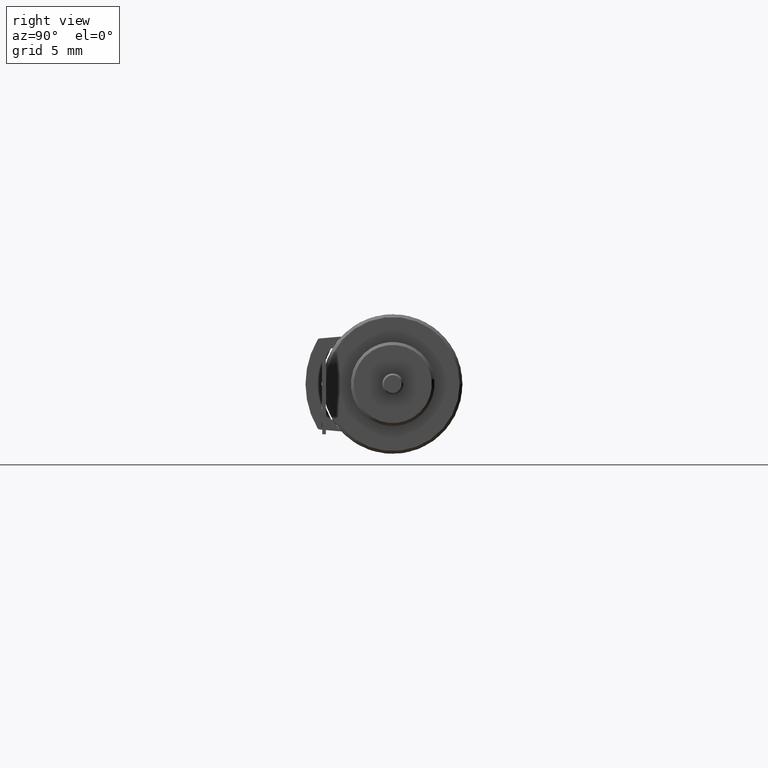
[diagram: clean part render]
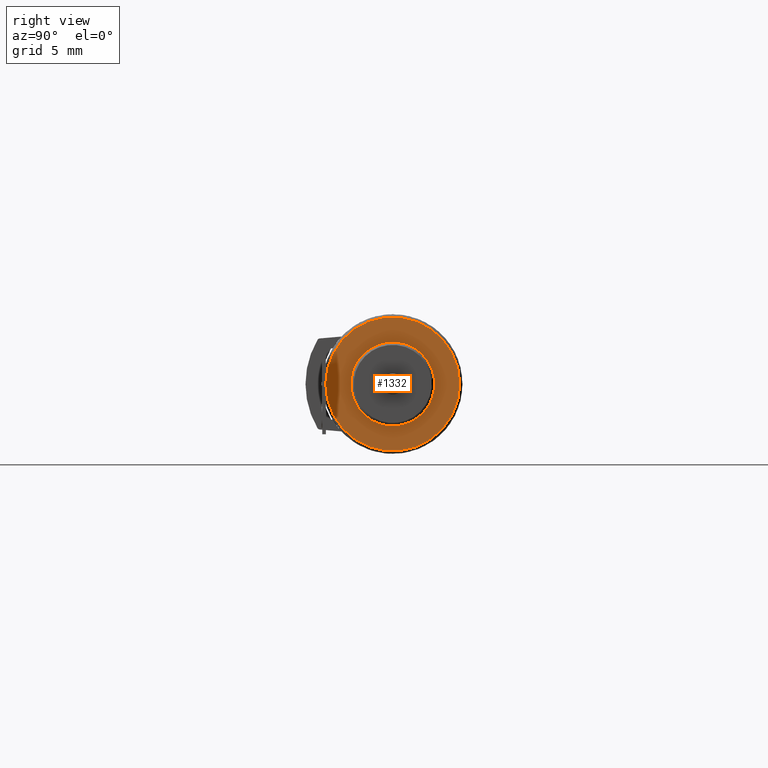
[diagram: same view with one face highlighted and labeled with its STEP entity id]
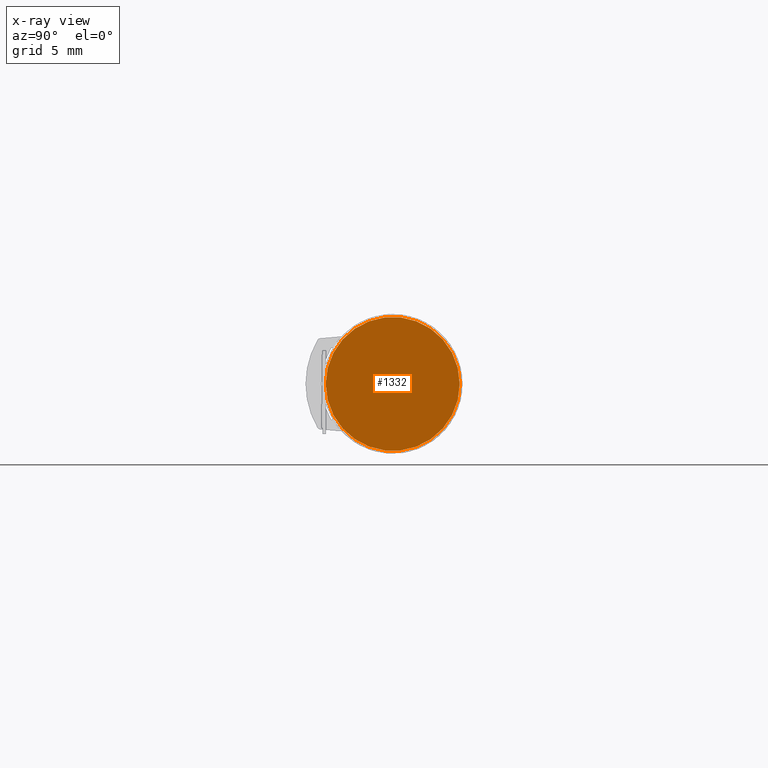
[diagram: x-ray of the same camera — body ghosted, the highlighted face saturated]
A machine part, right view. The second image highlights one B-rep face of the part: STEP entity #1332.
The next image is the same camera in x-ray: the body ghosted, the highlighted face saturated — about 0% of this face is hidden behind the body in this view.
In plain terms, the highlighted planar face has unit normal (-1, 0, 0).
Its self-contained STEP definition (entity closure, byte-faithful):
#1127=CARTESIAN_POINT('',(8.7E0,0.E0,0.E0));
#1128=DIRECTION('',(-1.E0,0.E0,0.E0));
#1129=DIRECTION('',(0.E0,1.E0,0.E0));
#1130=AXIS2_PLACEMENT_3D('',#1127,#1128,#1129);
#1132=CARTESIAN_POINT('',(8.7E0,0.E0,0.E0));
#1133=DIRECTION('',(-1.E0,0.E0,0.E0));
#1134=DIRECTION('',(0.E0,-1.E0,0.E0));
#1135=AXIS2_PLACEMENT_3D('',#1132,#1133,#1134);
#1279=CARTESIAN_POINT('',(8.7E0,4.8E0,0.E0));
#1280=CARTESIAN_POINT('',(8.7E0,-4.8E0,0.E0));
#1281=VERTEX_POINT('',#1279);
#1282=VERTEX_POINT('',#1280);
#1321=CARTESIAN_POINT('',(8.7E0,3.E0,0.E0));
#1322=DIRECTION('',(-1.E0,0.E0,0.E0));
#1323=DIRECTION('',(0.E0,-1.E0,0.E0));
#1324=AXIS2_PLACEMENT_3D('',#1321,#1322,#1323);
#1325=PLANE('',#1324);
#1327=ORIENTED_EDGE('',*,*,#1326,.T.);
#1329=ORIENTED_EDGE('',*,*,#1328,.T.);
#1330=EDGE_LOOP('',(#1327,#1329));
#1331=FACE_OUTER_BOUND('',#1330,.F.);
#1332=ADVANCED_FACE('',(#1331),#1325,.F.);
#1131=CIRCLE('',#1130,4.8E0);
#1136=CIRCLE('',#1135,4.8E0);
#1326=EDGE_CURVE('',#1281,#1282,#1131,.T.);
#1328=EDGE_CURVE('',#1282,#1281,#1136,.T.);